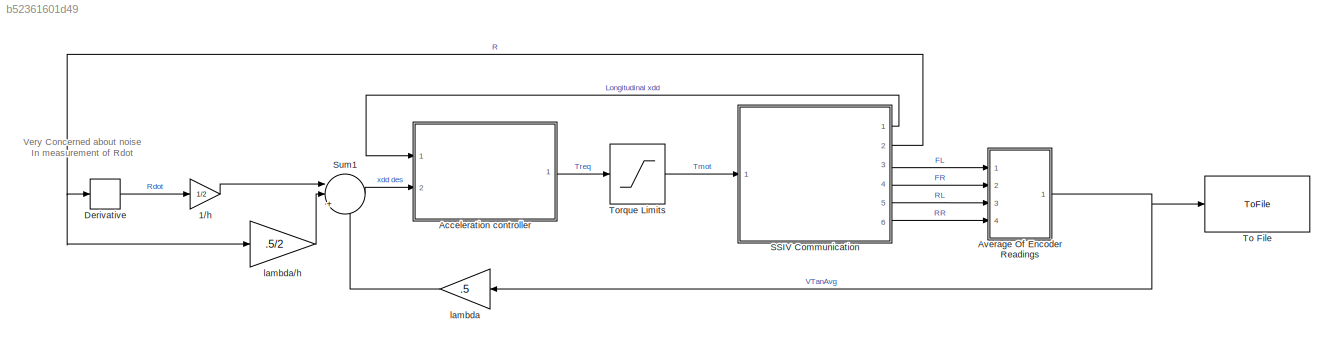
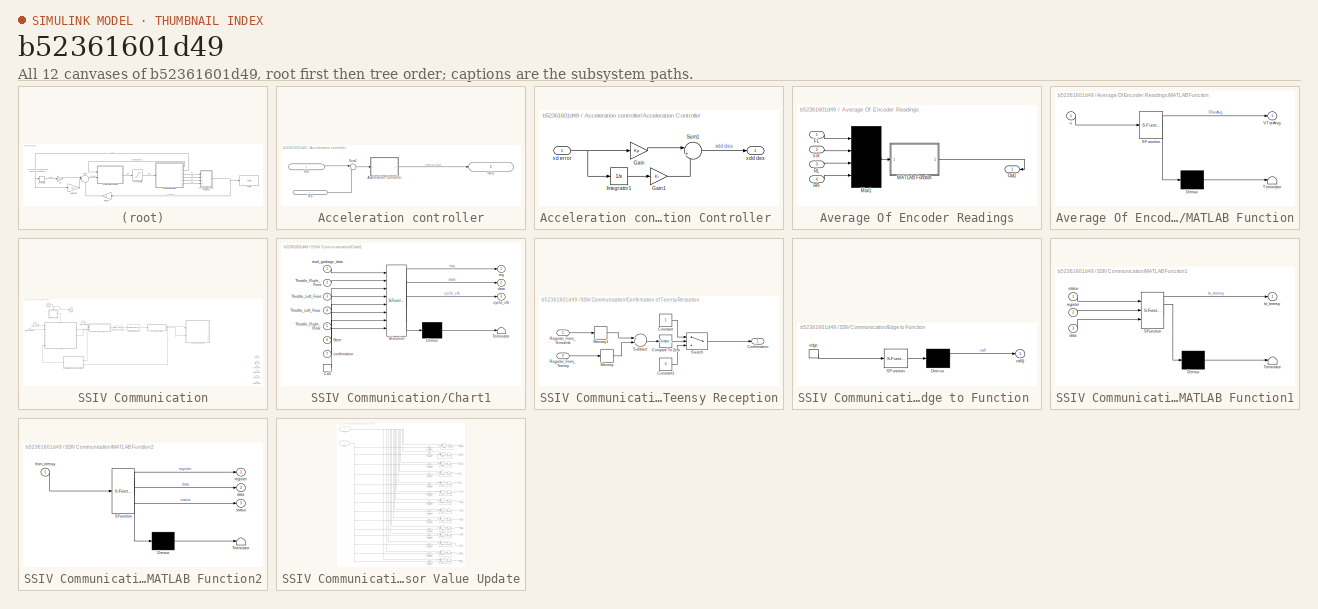
[diagram: thumbnail index - all 12 canvases of the model, root first then tree order]
MODEL slx_b52361601d49
KIND model
CONFIG AbsTol = auto
CONFIG EnableMultiTasking = off
CONFIG FixedStep = auto
CONFIG MaxStep = .1
CONFIG MinStep = auto
CONFIG RelTol = 1e-3
CONFIG SampleTimeConstraint = Unconstrained
CONFIG Solver = ode45
CONFIG SolverName = ode45
CONFIG StartTime = 0.0
CONFIG StopTime = tsim
BLOCK [Gain] 1//h
  Gain = 1/2
  OutDataTypeStr = Inherit: Inherit via internal rule
  ParamDataTypeStr = Inherit: Inherit via internal rule
  SaturateOnIntegerOverflow = off
BLOCK [SubSystem] Acceleration controller
  Ports = [2, 1]
  RequestExecContextInheritance = off
BLOCK [SubSystem] Acceleration controller/Acceleration Controller 
  Ports = [1, 1]
  RequestExecContextInheritance = off
BLOCK [Gain] Acceleration controller/Acceleration Controller /Gain
  Gain = Kp
  OutDataTypeStr = Inherit: Inherit via internal rule
  ParamDataTypeStr = Inherit: Inherit via internal rule
  SaturateOnIntegerOverflow = off
BLOCK [Gain] Acceleration controller/Acceleration Controller /Gain1
  Gain = Ki
  OutDataTypeStr = Inherit: Inherit via internal rule
  ParamDataTypeStr = Inherit: Inherit via internal rule
  SaturateOnIntegerOverflow = off
BLOCK [Integrator] Acceleration controller/Acceleration Controller /Integrator1
  Ports = [1, 1]
BLOCK [Sum] Acceleration controller/Acceleration Controller /Sum1
  IconShape = round
  InputSameDT = off
  Inputs = |+-
  OutDataTypeStr = Inherit: Inherit via internal rule
  Ports = [2, 1]
  SaturateOnIntegerOverflow = off
BLOCK [Inport] Acceleration controller/Acceleration Controller /xd error
  IconDisplay = Port number
BLOCK [Outport] Acceleration controller/Acceleration Controller /xdd des
  IconDisplay = Port number
BLOCK [Inport] Acceleration controller/In3
  IconDisplay = Port number and signal name
BLOCK [Inport] Acceleration controller/In4
  IconDisplay = Port number and signal name
  Port = 2
BLOCK [Outport] Acceleration controller/Out2
  IconDisplay = Port number and signal name
BLOCK [Sum] Acceleration controller/Sum1
  IconShape = round
  InputSameDT = off
  Inputs = |+-
  OutDataTypeStr = Inherit: Inherit via internal rule
  Ports = [2, 1]
  SaturateOnIntegerOverflow = off
BLOCK [SubSystem] Average Of Encoder Readings
  Ports = [4, 1]
  RequestExecContextInheritance = off
BLOCK [Inport] Average Of Encoder Readings/FL
  IconDisplay = Port number
BLOCK [Inport] Average Of Encoder Readings/FR
  IconDisplay = Port number
  Port = 2
BLOCK [SubSystem] Average Of Encoder Readings/MATLAB Function
  ErrorFcn = Stateflow.Translate.translate
  PermitHierarchicalResolution = ExplicitOnly
  Ports = [1, 1]
  RequestExecContextInheritance = off
  SFBlockType = MATLAB Function
  TreatAsAtomicUnit = on
BLOCK [Demux] Average Of Encoder Readings/MATLAB Function/ Demux 
  Outputs = 1
  Ports = [1, 1]
BLOCK [S-Function] Average Of Encoder Readings/MATLAB Function/ SFunction 
  EnableBusSupport = off
  FunctionName = sf_sfun
  PortCounts = [1 2]
  Ports = [1, 2]
  SFcnIsStateOwnerBlock = off
  SFunctionDeploymentMode = off
  Tag = Stateflow S-Function HeadwayControllerImplementationR2017a 4
BLOCK [Terminator] Average Of Encoder Readings/MATLAB Function/ Terminator 
BLOCK [Outport] Average Of Encoder Readings/MATLAB Function/VTanAvg
  IconDisplay = Port number
BLOCK [Inport] Average Of Encoder Readings/MATLAB Function/u
  IconDisplay = Port number
BLOCK [Mux] Average Of Encoder Readings/Mux1
  DisplayOption = signals
  Ports = [4, 1]
BLOCK [Outport] Average Of Encoder Readings/Out1
  IconDisplay = Port number and signal name
BLOCK [Inport] Average Of Encoder Readings/RL
  IconDisplay = Port number
  Port = 3
BLOCK [Inport] Average Of Encoder Readings/RR
  IconDisplay = Port number
  Port = 4
BLOCK [Derivative] Derivative
BLOCK [SubSystem] SSIV Communication
  Ports = [1, 6]
  RequestExecContextInheritance = off
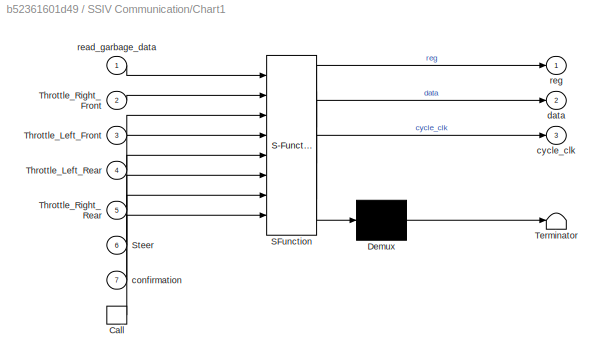
BLOCK [SubSystem] SSIV Communication/Chart1
  ErrorFcn = Stateflow.Translate.translate
  PermitHierarchicalResolution = ExplicitOnly
  Ports = [7, 3, 0, 1]
  RequestExecContextInheritance = off
  SFBlockType = Chart
  TreatAsAtomicUnit = on
BLOCK [Demux] SSIV Communication/Chart1/ Demux 
  Outputs = 1
  Ports = [1, 1]
BLOCK [S-Function] SSIV Communication/Chart1/ SFunction 
  EnableBusSupport = off
  FunctionName = sf_sfun
  PortCounts = [8 4]
  Ports = [8, 4]
  SFcnIsStateOwnerBlock = off
  SFunctionDeploymentMode = off
  Tag = Stateflow S-Function HeadwayControllerImplementationR2017a 5
BLOCK [Terminator] SSIV Communication/Chart1/ Terminator 
BLOCK [TriggerPort] SSIV Communication/Chart1/Call
  Ports = [0, 1]
  ShowOutputPort = on
  StatesWhenEnabling = held
  TriggerType = function-call
  VariantControl = Variant
BLOCK [Inport] SSIV Communication/Chart1/Steer
  IconDisplay = Port number
  Port = 6
BLOCK [Inport] SSIV Communication/Chart1/Throttle_Left_Front
  IconDisplay = Port number
  Port = 3
BLOCK [Inport] SSIV Communication/Chart1/Throttle_Left_Rear
  IconDisplay = Port number
  Port = 4
BLOCK [Inport] SSIV Communication/Chart1/Throttle_Right_Front
  IconDisplay = Port number
  Port = 2
BLOCK [Inport] SSIV Communication/Chart1/Throttle_Right_Rear
  IconDisplay = Port number
  Port = 5
BLOCK [Inport] SSIV Communication/Chart1/confirmation
  IconDisplay = Port number
  Port = 7
BLOCK [Outport] SSIV Communication/Chart1/cycle_clk
  IconDisplay = Port number
  Port = 3
BLOCK [Outport] SSIV Communication/Chart1/data
  IconDisplay = Port number
  Port = 2
BLOCK [Inport] SSIV Communication/Chart1/read_garbage_data
  IconDisplay = Port number
BLOCK [Outport] SSIV Communication/Chart1/reg
  IconDisplay = Port number
BLOCK [Reference] SSIV Communication/Clock  REF=simulink_extras/Flip Flops/Clock
  Ports = [0, 1]
  SourceBlock = simulink_extras/Flip Flops/Clock
  SourceProductBaseCode = SL
  SourceProductName = Simulink
  SourceType = Digital clock
BLOCK [SubSystem] SSIV Communication/Confirmation of Teensy Reception
  Ports = [2, 1]
  RequestExecContextInheritance = off
BLOCK [Reference] SSIV Communication/Confirmation of Teensy Reception/Compare To Zero  REF=simulink/Logic and Bit
Operations/Compare
To Zero
  Ports = [1, 1]
  SourceBlock = simulink/Logic and Bit\nOperations/Compare\nTo Zero
  SourceProductBaseCode = SL
  SourceProductName = Simulink
  SourceType = Compare To Zero
BLOCK [Outport] SSIV Communication/Confirmation of Teensy Reception/Confirmation
  IconDisplay = Port number
BLOCK [Constant] SSIV Communication/Confirmation of Teensy Reception/Constant
BLOCK [Constant] SSIV Communication/Confirmation of Teensy Reception/Constant1
  Value = 0
BLOCK [Memory] SSIV Communication/Confirmation of Teensy Reception/Memory
BLOCK [Memory] SSIV Communication/Confirmation of Teensy Reception/Memory1
BLOCK [Inport] SSIV Communication/Confirmation of Teensy Reception/Register_From_Simulink
  IconDisplay = Port number
BLOCK [Inport] SSIV Communication/Confirmation of Teensy Reception/Register_From_Teensy
  IconDisplay = Port number
  Port = 2
BLOCK [Sum] SSIV Communication/Confirmation of Teensy Reception/Subtract
  InputSameDT = off
  Inputs = +-
  OutDataTypeStr = Inherit: Inherit via internal rule
  Ports = [2, 1]
  SaturateOnIntegerOverflow = off
BLOCK [Switch] SSIV Communication/Confirmation of Teensy Reception/Switch
  Criteria = u2 ~= 0
  InputSameDT = off
  SaturateOnIntegerOverflow = off
BLOCK [DataTypeConversion] SSIV Communication/Data Type Conversion2
  OutDataTypeStr = uint32
  RndMeth = Floor
  SaturateOnIntegerOverflow = off
BLOCK [SubSystem] SSIV Communication/Edge to Function 
  ErrorFcn = Stateflow.Translate.translate
  PermitHierarchicalResolution = ExplicitOnly
  Ports = [0, 1, 0, 1]
  RequestExecContextInheritance = off
  SFBlockType = Chart
  TreatAsAtomicUnit = on
BLOCK [Demux] SSIV Communication/Edge to Function / Demux 
  Outputs = 1
  Ports = [1, 1]
BLOCK [S-Function] SSIV Communication/Edge to Function / SFunction 
  EnableBusSupport = off
  FunctionName = sf_sfun
  PortCounts = [1 1]
  Ports = [1, 1]
  SFcnIsStateOwnerBlock = off
  SFunctionDeploymentMode = off
  Tag = Stateflow S-Function HeadwayControllerImplementationR2017a 2
BLOCK [Outport] SSIV Communication/Edge to Function /call()
  IconDisplay = Port number
BLOCK [TriggerPort] SSIV Communication/Edge to Function /edge
  Ports = [0, 1]
  ShowOutputPort = on
  VariantControl = Variant
BLOCK [Outport] SSIV Communication/FL Wheel Vel
  IconDisplay = Port number
  Port = 3
BLOCK [Outport] SSIV Communication/FR Wheel Vel
  IconDisplay = Port number
  Port = 4
BLOCK [Outport] SSIV Communication/Long Acc
  IconDisplay = Port number
BLOCK [SubSystem] SSIV Communication/MATLAB Function1
  ErrorFcn = Stateflow.Translate.translate
  PermitHierarchicalResolution = ExplicitOnly
  Ports = [3, 1]
  RequestExecContextInheritance = off
  SFBlockType = MATLAB Function
  TreatAsAtomicUnit = on
BLOCK [Demux] SSIV Communication/MATLAB Function1/ Demux 
  Outputs = 1
  Ports = [1, 1]
BLOCK [S-Function] SSIV Communication/MATLAB Function1/ SFunction 
  EnableBusSupport = off
  FunctionName = sf_sfun
  PortCounts = [3 2]
  Ports = [3, 2]
  SFcnIsStateOwnerBlock = off
  SFunctionDeploymentMode = off
  Tag = Stateflow S-Function HeadwayControllerImplementationR2017a 1
BLOCK [Terminator] SSIV Communication/MATLAB Function1/ Terminator 
BLOCK [Inport] SSIV Communication/MATLAB Function1/data
  IconDisplay = Port number
  Port = 3
BLOCK [Inport] SSIV Communication/MATLAB Function1/register
  IconDisplay = Port number
  Port = 2
BLOCK [Inport] SSIV Communication/MATLAB Function1/status
  IconDisplay = Port number
BLOCK [Outport] SSIV Communication/MATLAB Function1/to_teensy
  IconDisplay = Port number
BLOCK [SubSystem] SSIV Communication/MATLAB Function2
  ErrorFcn = Stateflow.Translate.translate
  PermitHierarchicalResolution = ExplicitOnly
  Ports = [1, 3]
  RequestExecContextInheritance = off
  SFBlockType = MATLAB Function
  TreatAsAtomicUnit = on
BLOCK [Demux] SSIV Communication/MATLAB Function2/ Demux 
  Outputs = 1
  Ports = [1, 1]
BLOCK [S-Function] SSIV Communication/MATLAB Function2/ SFunction 
  EnableBusSupport = off
  FunctionName = sf_sfun
  PortCounts = [1 4]
  Ports = [1, 4]
  SFcnIsStateOwnerBlock = off
  SFunctionDeploymentMode = off
  Tag = Stateflow S-Function HeadwayControllerImplementationR2017a 3
BLOCK [Terminator] SSIV Communication/MATLAB Function2/ Terminator 
BLOCK [Outport] SSIV Communication/MATLAB Function2/data
  IconDisplay = Port number
  Port = 2
BLOCK [Inport] SSIV Communication/MATLAB Function2/from_teensy
  IconDisplay = Port number
BLOCK [Outport] SSIV Communication/MATLAB Function2/register
  IconDisplay = Port number
BLOCK [Outport] SSIV Communication/MATLAB Function2/status
  IconDisplay = Port number
  Port = 3
BLOCK [Outport] SSIV Communication/RL Wheel Vel
  IconDisplay = Port number
  Port = 5
BLOCK [Outport] SSIV Communication/RR Wheel Vel1
  IconDisplay = Port number
  Port = 6
BLOCK [Constant] SSIV Communication/Read_Data
  Value = 255
BLOCK [Reference] SSIV Communication/SPI Master Transfer  REF=raspberrypilib/SPI Master Transfer
  Ports = [1, 1]
  SourceBlock = raspberrypilib/SPI Master Transfer
  SourceProductBaseCode = RASPPI
  SourceProductName = Simulink Support Package for Raspberry Pi Hardware
  SourceType = codertarget.raspi.internal.SPIMasterTransfer
BLOCK [Scope] SSIV Communication/Scope
  Floating = off
  NumInputPorts = 1
  Ports = [1]
  ScopeSpecificationString = Simulink.scopes.TimeScopeBlockCfg('CurrentConfiguration', extmgr.ConfigurationSet(extmgr.Configuration('Core','General UI',true),extmgr.Configuration('Core','Source UI',true),extmgr.Configuration('Sources','WiredSimulink',true,'DataLoggingVariableName','ScopeData1'),extmgr.Configuration('Visuals','Time Domain',true,'SerializedDisplays',{struct('MinYLimReal','-10.00000','MaxYLimReal','10.00000','YL...<+1416ch>
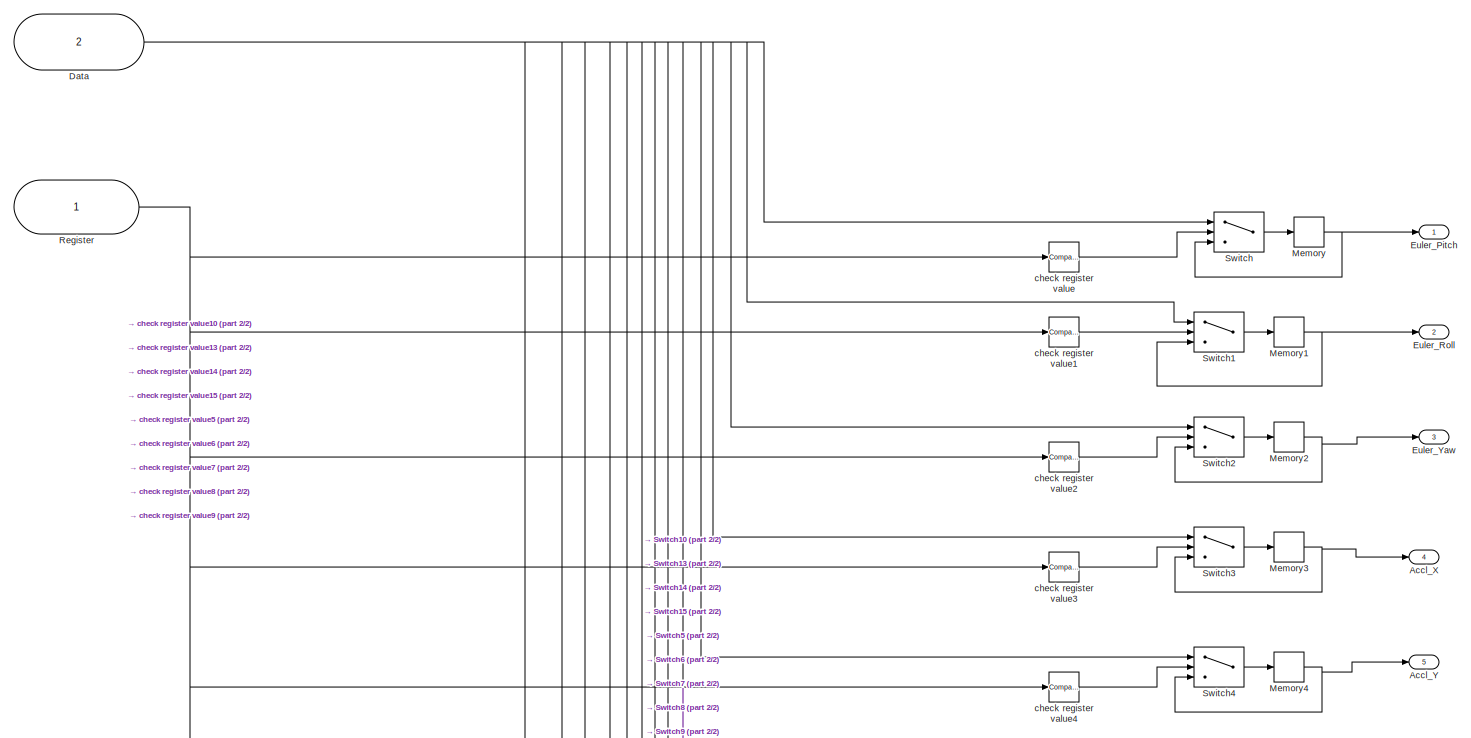
[diagram: SSIV Communication/Sensor Value Update - part 1/2, full width, top band]
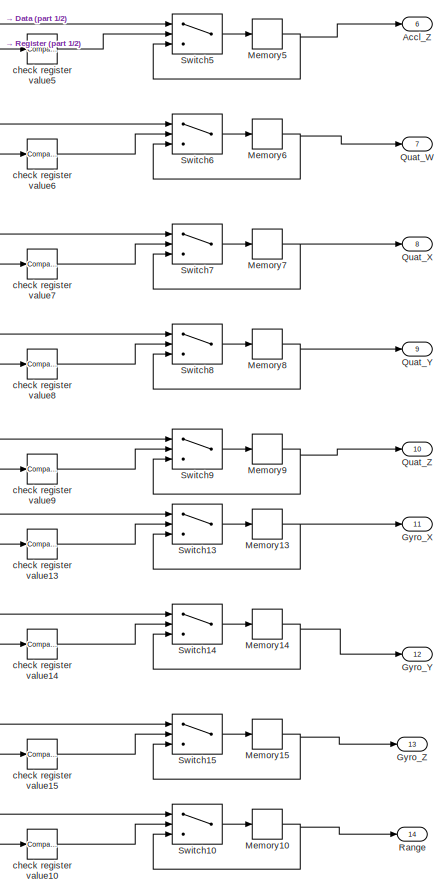
[diagram: SSIV Communication/Sensor Value Update - part 2/2, bottom right region]
BLOCK [SubSystem] SSIV Communication/Sensor Value Update
  Ports = [2, 14]
  RequestExecContextInheritance = off
BLOCK [Outport] SSIV Communication/Sensor Value Update/Accl_X
  IconDisplay = Port number
  Port = 4
BLOCK [Outport] SSIV Communication/Sensor Value Update/Accl_Y
  IconDisplay = Port number
  Port = 5
BLOCK [Outport] SSIV Communication/Sensor Value Update/Accl_Z
  IconDisplay = Port number
  Port = 6
BLOCK [Inport] SSIV Communication/Sensor Value Update/Data
  IconDisplay = Port number
  Port = 2
BLOCK [Outport] SSIV Communication/Sensor Value Update/Euler_Pitch
  IconDisplay = Port number
BLOCK [Outport] SSIV Communication/Sensor Value Update/Euler_Roll
  IconDisplay = Port number
  Port = 2
BLOCK [Outport] SSIV Communication/Sensor Value Update/Euler_Yaw
  IconDisplay = Port number
  Port = 3
BLOCK [Outport] SSIV Communication/Sensor Value Update/Gyro_X
  IconDisplay = Port number
  Port = 11
BLOCK [Outport] SSIV Communication/Sensor Value Update/Gyro_Y
  IconDisplay = Port number
  Port = 12
BLOCK [Outport] SSIV Communication/Sensor Value Update/Gyro_Z
  IconDisplay = Port number
  Port = 13
BLOCK [Memory] SSIV Communication/Sensor Value Update/Memory
BLOCK [Memory] SSIV Communication/Sensor Value Update/Memory1
BLOCK [Memory] SSIV Communication/Sensor Value Update/Memory10
BLOCK [Memory] SSIV Communication/Sensor Value Update/Memory13
BLOCK [Memory] SSIV Communication/Sensor Value Update/Memory14
BLOCK [Memory] SSIV Communication/Sensor Value Update/Memory15
BLOCK [Memory] SSIV Communication/Sensor Value Update/Memory2
BLOCK [Memory] SSIV Communication/Sensor Value Update/Memory3
BLOCK [Memory] SSIV Communication/Sensor Value Update/Memory4
BLOCK [Memory] SSIV Communication/Sensor Value Update/Memory5
BLOCK [Memory] SSIV Communication/Sensor Value Update/Memory6
BLOCK [Memory] SSIV Communication/Sensor Value Update/Memory7
BLOCK [Memory] SSIV Communication/Sensor Value Update/Memory8
BLOCK [Memory] SSIV Communication/Sensor Value Update/Memory9
BLOCK [Outport] SSIV Communication/Sensor Value Update/Quat_W
  IconDisplay = Port number
  Port = 7
BLOCK [Outport] SSIV Communication/Sensor Value Update/Quat_X
  IconDisplay = Port number
  Port = 8
BLOCK [Outport] SSIV Communication/Sensor Value Update/Quat_Y
  IconDisplay = Port number
  Port = 9
BLOCK [Outport] SSIV Communication/Sensor Value Update/Quat_Z
  IconDisplay = Port number
  Port = 10
BLOCK [Outport] SSIV Communication/Sensor Value Update/Range
  IconDisplay = Port number
  Port = 14
BLOCK [Inport] SSIV Communication/Sensor Value Update/Register
  IconDisplay = Port number
BLOCK [Switch] SSIV Communication/Sensor Value Update/Switch
  Criteria = u2 ~= 0
  InputSameDT = off
  SaturateOnIntegerOverflow = off
BLOCK [Switch] SSIV Communication/Sensor Value Update/Switch1
  Criteria = u2 ~= 0
  InputSameDT = off
  SaturateOnIntegerOverflow = off
BLOCK [Switch] SSIV Communication/Sensor Value Update/Switch10
  Criteria = u2 ~= 0
  InputSameDT = off
  SaturateOnIntegerOverflow = off
BLOCK [Switch] SSIV Communication/Sensor Value Update/Switch13
  Criteria = u2 ~= 0
  InputSameDT = off
  SaturateOnIntegerOverflow = off
BLOCK [Switch] SSIV Communication/Sensor Value Update/Switch14
  Criteria = u2 ~= 0
  InputSameDT = off
  SaturateOnIntegerOverflow = off
BLOCK [Switch] SSIV Communication/Sensor Value Update/Switch15
  Criteria = u2 ~= 0
  InputSameDT = off
  SaturateOnIntegerOverflow = off
BLOCK [Switch] SSIV Communication/Sensor Value Update/Switch2
  Criteria = u2 ~= 0
  InputSameDT = off
  SaturateOnIntegerOverflow = off
BLOCK [Switch] SSIV Communication/Sensor Value Update/Switch3
  Criteria = u2 ~= 0
  InputSameDT = off
  SaturateOnIntegerOverflow = off
BLOCK [Switch] SSIV Communication/Sensor Value Update/Switch4
  Criteria = u2 ~= 0
  InputSameDT = off
  SaturateOnIntegerOverflow = off
BLOCK [Switch] SSIV Communication/Sensor Value Update/Switch5
  Criteria = u2 ~= 0
  InputSameDT = off
  SaturateOnIntegerOverflow = off
BLOCK [Switch] SSIV Communication/Sensor Value Update/Switch6
  Criteria = u2 ~= 0
  InputSameDT = off
  SaturateOnIntegerOverflow = off
BLOCK [Switch] SSIV Communication/Sensor Value Update/Switch7
  Criteria = u2 ~= 0
  InputSameDT = off
  SaturateOnIntegerOverflow = off
BLOCK [Switch] SSIV Communication/Sensor Value Update/Switch8
  Criteria = u2 ~= 0
  InputSameDT = off
  SaturateOnIntegerOverflow = off
BLOCK [Switch] SSIV Communication/Sensor Value Update/Switch9
  Criteria = u2 ~= 0
  InputSameDT = off
  SaturateOnIntegerOverflow = off
BLOCK [Reference] SSIV Communication/Sensor Value Update/check register value  REF=simulink/Logic and Bit
Operations/Compare
To Constant
  Ports = [1, 1]
  SourceBlock = simulink/Logic and Bit\nOperations/Compare\nTo Constant
  SourceProductBaseCode = SL
  SourceProductName = Simulink
  SourceType = Compare To Constant
BLOCK [Reference] SSIV Communication/Sensor Value Update/check register value1  REF=simulink/Logic and Bit
Operations/Compare
To Constant
  Ports = [1, 1]
  SourceBlock = simulink/Logic and Bit\nOperations/Compare\nTo Constant
  SourceProductBaseCode = SL
  SourceProductName = Simulink
  SourceType = Compare To Constant
BLOCK [Reference] SSIV Communication/Sensor Value Update/check register value10  REF=simulink/Logic and Bit
Operations/Compare
To Constant
  Ports = [1, 1]
  SourceBlock = simulink/Logic and Bit\nOperations/Compare\nTo Constant
  SourceProductBaseCode = SL
  SourceProductName = Simulink
  SourceType = Compare To Constant
BLOCK [Reference] SSIV Communication/Sensor Value Update/check register value13  REF=simulink/Logic and Bit
Operations/Compare
To Constant
  Ports = [1, 1]
  SourceBlock = simulink/Logic and Bit\nOperations/Compare\nTo Constant
  SourceProductBaseCode = SL
  SourceProductName = Simulink
  SourceType = Compare To Constant
BLOCK [Reference] SSIV Communication/Sensor Value Update/check register value14  REF=simulink/Logic and Bit
Operations/Compare
To Constant
  Ports = [1, 1]
  SourceBlock = simulink/Logic and Bit\nOperations/Compare\nTo Constant
  SourceProductBaseCode = SL
  SourceProductName = Simulink
  SourceType = Compare To Constant
BLOCK [Reference] SSIV Communication/Sensor Value Update/check register value15  REF=simulink/Logic and Bit
Operations/Compare
To Constant
  Ports = [1, 1]
  SourceBlock = simulink/Logic and Bit\nOperations/Compare\nTo Constant
  SourceProductBaseCode = SL
  SourceProductName = Simulink
  SourceType = Compare To Constant
BLOCK [Reference] SSIV Communication/Sensor Value Update/check register value2  REF=simulink/Logic and Bit
Operations/Compare
To Constant
  Ports = [1, 1]
  SourceBlock = simulink/Logic and Bit\nOperations/Compare\nTo Constant
  SourceProductBaseCode = SL
  SourceProductName = Simulink
  SourceType = Compare To Constant
BLOCK [Reference] SSIV Communication/Sensor Value Update/check register value3  REF=simulink/Logic and Bit
Operations/Compare
To Constant
  Ports = [1, 1]
  SourceBlock = simulink/Logic and Bit\nOperations/Compare\nTo Constant
  SourceProductBaseCode = SL
  SourceProductName = Simulink
  SourceType = Compare To Constant
BLOCK [Reference] SSIV Communication/Sensor Value Update/check register value4  REF=simulink/Logic and Bit
Operations/Compare
To Constant
  Ports = [1, 1]
  SourceBlock = simulink/Logic and Bit\nOperations/Compare\nTo Constant
  SourceProductBaseCode = SL
  SourceProductName = Simulink
  SourceType = Compare To Constant
BLOCK [Reference] SSIV Communication/Sensor Value Update/check register value5  REF=simulink/Logic and Bit
Operations/Compare
To Constant
  Ports = [1, 1]
  SourceBlock = simulink/Logic and Bit\nOperations/Compare\nTo Constant
  SourceProductBaseCode = SL
  SourceProductName = Simulink
  SourceType = Compare To Constant
BLOCK [Reference] SSIV Communication/Sensor Value Update/check register value6  REF=simulink/Logic and Bit
Operations/Compare
To Constant
  Ports = [1, 1]
  SourceBlock = simulink/Logic and Bit\nOperations/Compare\nTo Constant
  SourceProductBaseCode = SL
  SourceProductName = Simulink
  SourceType = Compare To Constant
BLOCK [Reference] SSIV Communication/Sensor Value Update/check register value7  REF=simulink/Logic and Bit
Operations/Compare
To Constant
  Ports = [1, 1]
  SourceBlock = simulink/Logic and Bit\nOperations/Compare\nTo Constant
  SourceProductBaseCode = SL
  SourceProductName = Simulink
  SourceType = Compare To Constant
BLOCK [Reference] SSIV Communication/Sensor Value Update/check register value8  REF=simulink/Logic and Bit
Operations/Compare
To Constant
  Ports = [1, 1]
  SourceBlock = simulink/Logic and Bit\nOperations/Compare\nTo Constant
  SourceProductBaseCode = SL
  SourceProductName = Simulink
  SourceType = Compare To Constant
BLOCK [Reference] SSIV Communication/Sensor Value Update/check register value9  REF=simulink/Logic and Bit
Operations/Compare
To Constant
  Ports = [1, 1]
  SourceBlock = simulink/Logic and Bit\nOperations/Compare\nTo Constant
  SourceProductBaseCode = SL
  SourceProductName = Simulink
  SourceType = Compare To Constant
BLOCK [Inport] SSIV Communication/Torque All Wheels
  IconDisplay = Port number
BLOCK [Outport] SSIV Communication/UltraSonic
  IconDisplay = Port number
  Port = 2
BLOCK [Constant] SSIV Communication/temp_status
  Value = 255
BLOCK [Sum] Sum1
  IconShape = round
  InputSameDT = off
  Inputs = ||++-
  OutDataTypeStr = Inherit: Inherit via internal rule
  Ports = [3, 1]
  SaturateOnIntegerOverflow = off
BLOCK [ToFile] To File
  Filename = ExpData.mat
  Ports = [1]
  SaveFormat = Timeseries
BLOCK [Saturate] Torque Limits
  InputPortMap = u0
  LowerLimit = 0
  Ports = [1, 1]
  UpperLimit = 1250
BLOCK [Gain] lambda
  Gain = .5
  OutDataTypeStr = Inherit: Inherit via internal rule
  ParamDataTypeStr = Inherit: Inherit via internal rule
  SaturateOnIntegerOverflow = off
BLOCK [Gain] lambda//h
  Gain = .5/2
  OutDataTypeStr = Inherit: Inherit via internal rule
  ParamDataTypeStr = Inherit: Inherit via internal rule
  SaturateOnIntegerOverflow = off
ANNOTATION (root): Very Concerned about noise In measurement of Rdot
LINE 1//h:1 -> Sum1:1
LINE Acceleration controller/Acceleration Controller /Gain1:1 -> Acceleration controller/Acceleration Controller /Sum1:2
LINE Acceleration controller/Acceleration Controller /Gain:1 -> Acceleration controller/Acceleration Controller /Sum1:1
LINE Acceleration controller/Acceleration Controller /Integrator1:1 -> Acceleration controller/Acceleration Controller /Gain1:1
LINE Acceleration controller/Acceleration Controller /Sum1:1 -> Acceleration controller/Acceleration Controller /xdd des:1
NET Acceleration controller/Acceleration Controller /xd error:1 -> Acceleration controller/Acceleration Controller /Gain:1, Acceleration controller/Acceleration Controller /Integrator1:1
LINE Acceleration controller/Acceleration Controller :1 -> Acceleration controller/Out2:1
LINE Acceleration controller/In3:1 -> Acceleration controller/Sum1:2
LINE Acceleration controller/In4:1 -> Acceleration controller/Sum1:1
LINE Acceleration controller/Sum1:1 -> Acceleration controller/Acceleration Controller :1
LINE Acceleration controller:1 -> Torque Limits:1
LINE Average Of Encoder Readings/FL:1 -> Average Of Encoder Readings/Mux1:1
LINE Average Of Encoder Readings/FR:1 -> Average Of Encoder Readings/Mux1:2
LINE Average Of Encoder Readings/MATLAB Function:1 -> Average Of Encoder Readings/Out1:1
LINE Average Of Encoder Readings/Mux1:1 -> Average Of Encoder Readings/MATLAB Function:1
LINE Average Of Encoder Readings/RL:1 -> Average Of Encoder Readings/Mux1:3
LINE Average Of Encoder Readings/RR:1 -> Average Of Encoder Readings/Mux1:4
NET Average Of Encoder Readings:1 -> To File:1, lambda:1
LINE Derivative:1 -> 1//h:1
NET SSIV Communication/Chart1:1 -> SSIV Communication/Confirmation of Teensy Reception:1, SSIV Communication/MATLAB Function1:2
LINE SSIV Communication/Chart1:2 -> SSIV Communication/MATLAB Function1:3
NET SSIV Communication/Clock:1 -> SSIV Communication/Edge to Function :trigger, SSIV Communication/Scope:1
LINE SSIV Communication/Confirmation of Teensy Reception/Compare To Zero:1 -> SSIV Communication/Confirmation of Teensy Reception/Switch:2
LINE SSIV Communication/Confirmation of Teensy Reception/Constant1:1 -> SSIV Communication/Confirmation of Teensy Reception/Switch:3
LINE SSIV Communication/Confirmation of Teensy Reception/Constant:1 -> SSIV Communication/Confirmation of Teensy Reception/Switch:1
LINE SSIV Communication/Confirmation of Teensy Reception/Memory1:1 -> SSIV Communication/Confirmation of Teensy Reception/Subtract:1
LINE SSIV Communication/Confirmation of Teensy Reception/Memory:1 -> SSIV Communication/Confirmation of Teensy Reception/Subtract:2
LINE SSIV Communication/Confirmation of Teensy Reception/Register_From_Simulink:1 -> SSIV Communication/Confirmation of Teensy Reception/Memory1:1
LINE SSIV Communication/Confirmation of Teensy Reception/Register_From_Teensy:1 -> SSIV Communication/Confirmation of Teensy Reception/Memory:1
LINE SSIV Communication/Confirmation of Teensy Reception/Subtract:1 -> SSIV Communication/Confirmation of Teensy Reception/Compare To Zero:1
LINE SSIV Communication/Confirmation of Teensy Reception/Switch:1 -> SSIV Communication/Confirmation of Teensy Reception/Confirmation:1
LINE SSIV Communication/Confirmation of Teensy Reception:1 -> SSIV Communication/Chart1:7
LINE SSIV Communication/Data Type Conversion2:1 -> SSIV Communication/SPI Master Transfer:1
LINE SSIV Communication/Edge to Function :1 -> SSIV Communication/Chart1:trigger
LINE SSIV Communication/MATLAB Function1:1 -> SSIV Communication/Data Type Conversion2:1
NET SSIV Communication/MATLAB Function2:1 -> SSIV Communication/Confirmation of Teensy Reception:2, SSIV Communication/Sensor Value Update:1
LINE SSIV Communication/MATLAB Function2:2 -> SSIV Communication/Sensor Value Update:2
LINE SSIV Communication/Read_Data:1 -> SSIV Communication/Chart1:1
LINE SSIV Communication/SPI Master Transfer:1 -> SSIV Communication/MATLAB Function2:1
NET SSIV Communication/Sensor Value Update/Data:1 -> SSIV Communication/Sensor Value Update/Switch10:1, SSIV Communication/Sensor Value Update/Switch13:1, SSIV Communication/Sensor Value Update/Switch14:1, SSIV Communication/Sensor Value Update/Switch15:1, SSIV Communication/Sensor Value Update/Switch1:1, SSIV Communication/Sensor Value Update/Switch2:1, SSIV Communication/Sensor Value Update/Switch3:1, SSIV Communication/Sensor Value Update/Switch4:1, SSIV Communication/Sensor Value Update/Switch5:1, SSIV Communication/Sensor Value Update/Switch6:1, SSIV Communication/Sensor Value Update/Switch7:1, SSIV Communication/Sensor Value Update/Switch8:1, SSIV Communication/Sensor Value Update/Switch9:1, SSIV Communication/Sensor Value Update/Switch:1
NET SSIV Communication/Sensor Value Update/Memory10:1 -> SSIV Communication/Sensor Value Update/Range:1, SSIV Communication/Sensor Value Update/Switch10:3
NET SSIV Communication/Sensor Value Update/Memory13:1 -> SSIV Communication/Sensor Value Update/Gyro_X:1, SSIV Communication/Sensor Value Update/Switch13:3
NET SSIV Communication/Sensor Value Update/Memory14:1 -> SSIV Communication/Sensor Value Update/Gyro_Y:1, SSIV Communication/Sensor Value Update/Switch14:3
NET SSIV Communication/Sensor Value Update/Memory15:1 -> SSIV Communication/Sensor Value Update/Gyro_Z:1, SSIV Communication/Sensor Value Update/Switch15:3
NET SSIV Communication/Sensor Value Update/Memory1:1 -> SSIV Communication/Sensor Value Update/Euler_Roll:1, SSIV Communication/Sensor Value Update/Switch1:3
NET SSIV Communication/Sensor Value Update/Memory2:1 -> SSIV Communication/Sensor Value Update/Euler_Yaw:1, SSIV Communication/Sensor Value Update/Switch2:3
NET SSIV Communication/Sensor Value Update/Memory3:1 -> SSIV Communication/Sensor Value Update/Accl_X:1, SSIV Communication/Sensor Value Update/Switch3:3
NET SSIV Communication/Sensor Value Update/Memory4:1 -> SSIV Communication/Sensor Value Update/Accl_Y:1, SSIV Communication/Sensor Value Update/Switch4:3
NET SSIV Communication/Sensor Value Update/Memory5:1 -> SSIV Communication/Sensor Value Update/Accl_Z:1, SSIV Communication/Sensor Value Update/Switch5:3
NET SSIV Communication/Sensor Value Update/Memory6:1 -> SSIV Communication/Sensor Value Update/Quat_W:1, SSIV Communication/Sensor Value Update/Switch6:3
NET SSIV Communication/Sensor Value Update/Memory7:1 -> SSIV Communication/Sensor Value Update/Quat_X:1, SSIV Communication/Sensor Value Update/Switch7:3
NET SSIV Communication/Sensor Value Update/Memory8:1 -> SSIV Communication/Sensor Value Update/Quat_Y:1, SSIV Communication/Sensor Value Update/Switch8:3
NET SSIV Communication/Sensor Value Update/Memory9:1 -> SSIV Communication/Sensor Value Update/Quat_Z:1, SSIV Communication/Sensor Value Update/Switch9:3
NET SSIV Communication/Sensor Value Update/Memory:1 -> SSIV Communication/Sensor Value Update/Euler_Pitch:1, SSIV Communication/Sensor Value Update/Switch:3
NET SSIV Communication/Sensor Value Update/Register:1 -> SSIV Communication/Sensor Value Update/check register value10:1, SSIV Communication/Sensor Value Update/check register value13:1, SSIV Communication/Sensor Value Update/check register value14:1, SSIV Communication/Sensor Value Update/check register value15:1, SSIV Communication/Sensor Value Update/check register value1:1, SSIV Communication/Sensor Value Update/check register value2:1, SSIV Communication/Sensor Value Update/check register value3:1, SSIV Communication/Sensor Value Update/check register value4:1, SSIV Communication/Sensor Value Update/check register value5:1, SSIV Communication/Sensor Value Update/check register value6:1, SSIV Communication/Sensor Value Update/check register value7:1, SSIV Communication/Sensor Value Update/check register value8:1, SSIV Communication/Sensor Value Update/check register value9:1, SSIV Communication/Sensor Value Update/check register value:1
LINE SSIV Communication/Sensor Value Update/Switch10:1 -> SSIV Communication/Sensor Value Update/Memory10:1
LINE SSIV Communication/Sensor Value Update/Switch13:1 -> SSIV Communication/Sensor Value Update/Memory13:1
LINE SSIV Communication/Sensor Value Update/Switch14:1 -> SSIV Communication/Sensor Value Update/Memory14:1
LINE SSIV Communication/Sensor Value Update/Switch15:1 -> SSIV Communication/Sensor Value Update/Memory15:1
LINE SSIV Communication/Sensor Value Update/Switch1:1 -> SSIV Communication/Sensor Value Update/Memory1:1
LINE SSIV Communication/Sensor Value Update/Switch2:1 -> SSIV Communication/Sensor Value Update/Memory2:1
LINE SSIV Communication/Sensor Value Update/Switch3:1 -> SSIV Communication/Sensor Value Update/Memory3:1
LINE SSIV Communication/Sensor Value Update/Switch4:1 -> SSIV Communication/Sensor Value Update/Memory4:1
LINE SSIV Communication/Sensor Value Update/Switch5:1 -> SSIV Communication/Sensor Value Update/Memory5:1
LINE SSIV Communication/Sensor Value Update/Switch6:1 -> SSIV Communication/Sensor Value Update/Memory6:1
LINE SSIV Communication/Sensor Value Update/Switch7:1 -> SSIV Communication/Sensor Value Update/Memory7:1
LINE SSIV Communication/Sensor Value Update/Switch8:1 -> SSIV Communication/Sensor Value Update/Memory8:1
LINE SSIV Communication/Sensor Value Update/Switch9:1 -> SSIV Communication/Sensor Value Update/Memory9:1
LINE SSIV Communication/Sensor Value Update/Switch:1 -> SSIV Communication/Sensor Value Update/Memory:1
LINE SSIV Communication/Sensor Value Update/check register value10:1 -> SSIV Communication/Sensor Value Update/Switch10:2
LINE SSIV Communication/Sensor Value Update/check register value13:1 -> SSIV Communication/Sensor Value Update/Switch13:2
LINE SSIV Communication/Sensor Value Update/check register value14:1 -> SSIV Communication/Sensor Value Update/Switch14:2
LINE SSIV Communication/Sensor Value Update/check register value15:1 -> SSIV Communication/Sensor Value Update/Switch15:2
LINE SSIV Communication/Sensor Value Update/check register value1:1 -> SSIV Communication/Sensor Value Update/Switch1:2
LINE SSIV Communication/Sensor Value Update/check register value2:1 -> SSIV Communication/Sensor Value Update/Switch2:2
LINE SSIV Communication/Sensor Value Update/check register value3:1 -> SSIV Communication/Sensor Value Update/Switch3:2
LINE SSIV Communication/Sensor Value Update/check register value4:1 -> SSIV Communication/Sensor Value Update/Switch4:2
LINE SSIV Communication/Sensor Value Update/check register value5:1 -> SSIV Communication/Sensor Value Update/Switch5:2
LINE SSIV Communication/Sensor Value Update/check register value6:1 -> SSIV Communication/Sensor Value Update/Switch6:2
LINE SSIV Communication/Sensor Value Update/check register value7:1 -> SSIV Communication/Sensor Value Update/Switch7:2
LINE SSIV Communication/Sensor Value Update/check register value8:1 -> SSIV Communication/Sensor Value Update/Switch8:2
LINE SSIV Communication/Sensor Value Update/check register value9:1 -> SSIV Communication/Sensor Value Update/Switch9:2
LINE SSIV Communication/Sensor Value Update/check register value:1 -> SSIV Communication/Sensor Value Update/Switch:2
LINE SSIV Communication/Torque All Wheels:1 -> SSIV Communication/Chart1:2
LINE SSIV Communication/temp_status:1 -> SSIV Communication/MATLAB Function1:1
LINE SSIV Communication:1 -> Acceleration controller:1
NET SSIV Communication:2 -> Derivative:1, lambda//h:1
LINE SSIV Communication:3 -> Average Of Encoder Readings:1
LINE SSIV Communication:4 -> Average Of Encoder Readings:2
LINE SSIV Communication:5 -> Average Of Encoder Readings:3
LINE SSIV Communication:6 -> Average Of Encoder Readings:4
LINE Sum1:1 -> Acceleration controller:2
LINE Torque Limits:1 -> SSIV Communication:1
LINE lambda//h:1 -> Sum1:2
LINE lambda:1 -> Sum1:3
note: NET lines group one-source signal fan-out (src -> all destinations, sorted); 1:1 wires keep LINE
CHART SSIV Communication/MATLAB Function1 states=1 transitions=1
  STATE_LABEL 'eML_blk_kernel()'
  STATE_LABEL 'SCRIPT:\nfunction to_teensy = input_of_spi_master_transfer(status,register,data)\n% to_teensy is a uint32 data type\n% The following mathematical operation makes the status input be the\n%   1st byte of to_teensy, register input the 2nd byte and\n%   data input the last two bytes of to_teensy.\n% data input is added by 500 to keep the value unsigned data is a\n% value between -500 and 500.  The 500 is su...<+803ch>'
CHART SSIV Communication/Edge to
Function  states=0 transitions=1
CHART SSIV Communication/MATLAB Function2 states=1 transitions=1
  STATE_LABEL 'eML_blk_kernel()'
  STATE_LABEL 'SCRIPT:\nfunction [register,data,status] = output_of_spi_master_transfer(from_teensy)\n%% from_teensy data format (uint32)\n%status is first byte of 1st byte\n%register is second byte of 2nd byte\n%high byte of teensy data is 3rd byte\n%low byte of teensy data is 4th byte\n\n%% create blank variables to be filled with 1 or 2 bytes of data\ndata_hex = blanks(4);     \nregister_hex = blanks(2);\nstatus_hex = b...<+689ch>'
CHART Average Of Encoder Readings/MATLAB Function states=1 transitions=1
  STATE_LABEL 'eML_blk_kernel()'
  STATE_LABEL 'SCRIPT:\nfunction VTanAvg = fcn(u)\n\nVTanAvg = u;\n'
CHART SSIV Communication/Chart1 states=20 transitions=21
  STATE_LABEL 'Range_finder\nentry: reg=151;\nentry: data = read_garbage_data;\nentry: cycle_clk = 0; %\n i= 0;'
  STATE_LABEL 'Steering_Write\nentry: reg = 121;\nentry: data = Steer;\nentry: cycle_clk = 0; %\n i = 1;'
  STATE_LABEL 'Throttle_Left_Rear_Write\nentry: reg=104;\nentry: data = Throttle_Left_Rear;\nentry: cycle_clk = 0; %\n i= 2;'
  STATE_LABEL 'Throttle_Right_Rear_Write\nentry: reg=103;\nentry: data = Throttle_Right_Rear;\nentry: cycle_clk = 0; %\n i= 3;'
  STATE_LABEL 'Gyro_Z_Read\nentry: reg=90;\nentry: data = read_garbage_data;\nentry: cycle_clk = 0; %\n i= 18;'
  STATE_LABEL 'Throttle_Left_Front_Write\nentry: reg=102;\nentry: data = Throttle_Left_Front;\nentry: cycle_clk = 0; %\n i= 4;'
  STATE_LABEL 'Gyro_Y_Read\nentry: reg=89;\nentry: data = read_garbage_data;\nentry: cycle_clk = 0; %\n i= 17;'
  STATE_LABEL 'Throttle_Right_Front_Write\nentry: reg = 101;\nentry: data = Throttle_Right_Front;\nentry: cycle_clk = 0; %\n i = 5;'
  STATE_LABEL 'Throttle_All_Write\nentry: reg = 100;\nentry: data = Throttle_Right_Front;\nentry: cycle_clk = 0; %\n i = 6;'
  STATE_LABEL 'Gyro_X_Read\nentry: reg=88;\nentry: data = read_garbage_data;\nentry: cycle_clk = 0; %\n i= 16;'
  STATE_LABEL 'Accl_X_Read\nentry: reg=81;\nentry: data = read_garbage_data;\nentry: cycle_clk = 1; %\n i= 6;'
  STATE_LABEL 'Quaternion_Z_Read\nentry: reg=87;\nentry: data = read_garbage_data;\nentry: cycle_clk = 0; %\n i= 15;'
  STATE_LABEL 'Accl_Y_Read\nentry: reg=82;\n i= i + 1;\nentry: data = read_garbage_data;\nentry: cycle_clk = 0; %\n i= 7;'
  STATE_LABEL 'Quaternion_Y_Read\nentry: reg=86;\nentry: data = read_garbage_data;\nentry: cycle_clk = 0; %\n i= 14;'
  STATE_LABEL 'Accl_Z_Read\nentry: reg=83;\nentry: data = read_garbage_data;\nentry: cycle_clk = 0; %\n i= 8;'
  STATE_LABEL 'Quaternion_X_Read\nentry: reg=85;\nentry: data = read_garbage_data;\nentry: cycle_clk = 0; %\n i= 13;'
  STATE_LABEL 'Quaternion_W_Read\nentry: reg=84;\nentry: data = read_garbage_data;\nentry: cycle_clk = 0; %\n i= 12;'
  STATE_LABEL 'Euler_Yaw_Read\nentry: reg=80;\nentry: data = read_garbage_data;\nentry: cycle_clk = 0; %\n i = 9;'
  STATE_LABEL 'Euler_Roll_Read\nentry: reg=79;\nentry: data = read_garbage_data;\nentry: cycle_clk = 0; %\n i= 10;'
  STATE_LABEL 'Euler_Pitch_Read\nentry: reg=78;\nentry: data = read_garbage_data;\nentry: cycle_clk = 0; %\n i= 11;'
